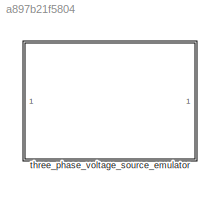
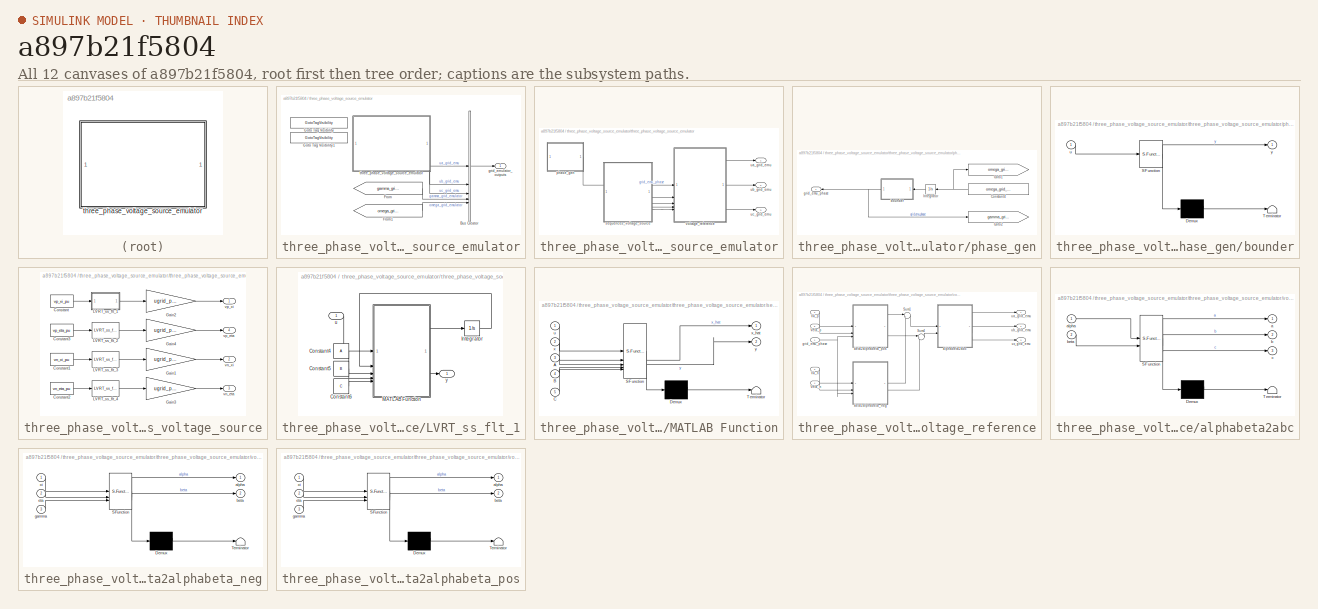
[diagram: thumbnail index - all 12 canvases of the model, root first then tree order]
MODEL slx_a897b21f5804
KIND library
CONFIG AbsTol = auto
CONFIG EnableMultiTasking = off
CONFIG FixedStep = auto
CONFIG MaxStep = auto
CONFIG MinStep = auto
CONFIG RelTol = 1e-3
CONFIG SampleTimeConstraint = Unconstrained
CONFIG SolverName = VariableStepAuto
CONFIG StartTime = 0.0
CONFIG StopTime = 10.0
BLOCK [SubSystem] three_phase_voltage_source_emulator
BLOCK [BusCreator] three_phase_voltage_source_emulator/Bus Creator
  DisplayOption = bar
  InheritFromInputs = on
  Inputs = 5
BLOCK [From] three_phase_voltage_source_emulator/From
  GotoTag = gamma_grid_emulator
  TagVisibility = scoped
BLOCK [From] three_phase_voltage_source_emulator/From1
  GotoTag = omega_grid_emulator
  TagVisibility = scoped
BLOCK [GotoTagVisibility] three_phase_voltage_source_emulator/Goto Tag Visibility
  GotoTag = omega_grid_emulator
BLOCK [GotoTagVisibility] three_phase_voltage_source_emulator/Goto Tag Visibility1
  GotoTag = gamma_grid_emulator
BLOCK [Outport] three_phase_voltage_source_emulator/grid_emulator_outputs
  VectorParamsAs1DForOutWhenUnconnected = off
BLOCK [SubSystem] three_phase_voltage_source_emulator/three_phase_voltage_source_emulator
BLOCK [SubSystem] three_phase_voltage_source_emulator/three_phase_voltage_source_emulator/phase_gen
BLOCK [Constant] three_phase_voltage_source_emulator/three_phase_voltage_source_emulator/phase_gen/Constant4
  NameLocation = top
  Value = omega_grid_emulator_nom
BLOCK [Goto] three_phase_voltage_source_emulator/three_phase_voltage_source_emulator/phase_gen/Goto1
  GotoTag = omega_grid_emulator
  TagVisibility = scoped
BLOCK [Goto] three_phase_voltage_source_emulator/three_phase_voltage_source_emulator/phase_gen/Goto2
  GotoTag = gamma_grid_emulator
  TagVisibility = scoped
BLOCK [Integrator] three_phase_voltage_source_emulator/three_phase_voltage_source_emulator/phase_gen/Integrator
  NameLocation = top
BLOCK [SubSystem] three_phase_voltage_source_emulator/three_phase_voltage_source_emulator/phase_gen/bounder
  ErrorFcn = Stateflow.Translate.translate
  PermitHierarchicalResolution = ExplicitOnly
  SFBlockType = MATLAB Function
  TreatAsAtomicUnit = on
  TreatAsGroupedWhenPropagatingVariantConditions = off
BLOCK [Demux] three_phase_voltage_source_emulator/three_phase_voltage_source_emulator/phase_gen/bounder/ Demux 
  Outputs = 1
BLOCK [S-Function] three_phase_voltage_source_emulator/three_phase_voltage_source_emulator/phase_gen/bounder/ SFunction 
  EnableBusSupport = off
  FunctionName = sf_sfun
  PortCounts = [1 2]
  SFcnIsStateOwnerBlock = off
  SFunctionDeploymentMode = off
  Tag = Stateflow S-Function 32
BLOCK [Terminator] three_phase_voltage_source_emulator/three_phase_voltage_source_emulator/phase_gen/bounder/ Terminator 
BLOCK [Inport] three_phase_voltage_source_emulator/three_phase_voltage_source_emulator/phase_gen/bounder/u
BLOCK [Outport] three_phase_voltage_source_emulator/three_phase_voltage_source_emulator/phase_gen/bounder/y
  VectorParamsAs1DForOutWhenUnconnected = off
BLOCK [Outport] three_phase_voltage_source_emulator/three_phase_voltage_source_emulator/phase_gen/grid_emu_phase
  VectorParamsAs1DForOutWhenUnconnected = off
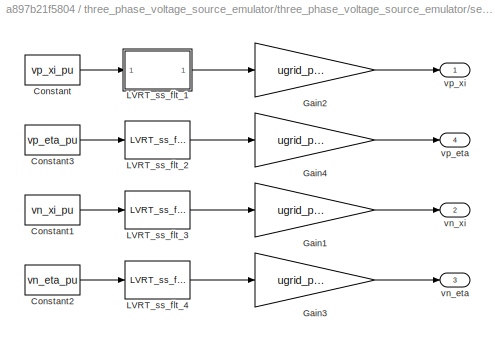
BLOCK [SubSystem] three_phase_voltage_source_emulator/three_phase_voltage_source_emulator/sequences_voltage_source
BLOCK [Constant] three_phase_voltage_source_emulator/three_phase_voltage_source_emulator/sequences_voltage_source/Constant
  Value = vp_xi_pu
BLOCK [Constant] three_phase_voltage_source_emulator/three_phase_voltage_source_emulator/sequences_voltage_source/Constant1
  Value = vn_xi_pu
BLOCK [Constant] three_phase_voltage_source_emulator/three_phase_voltage_source_emulator/sequences_voltage_source/Constant2
  Value = vn_eta_pu
BLOCK [Constant] three_phase_voltage_source_emulator/three_phase_voltage_source_emulator/sequences_voltage_source/Constant3
  Value = vp_eta_pu
BLOCK [Gain] three_phase_voltage_source_emulator/three_phase_voltage_source_emulator/sequences_voltage_source/Gain1
  Gain = ugrid_phase
BLOCK [Gain] three_phase_voltage_source_emulator/three_phase_voltage_source_emulator/sequences_voltage_source/Gain2
  Gain = ugrid_phase
BLOCK [Gain] three_phase_voltage_source_emulator/three_phase_voltage_source_emulator/sequences_voltage_source/Gain3
  Gain = ugrid_phase
BLOCK [Gain] three_phase_voltage_source_emulator/three_phase_voltage_source_emulator/sequences_voltage_source/Gain4
  Gain = ugrid_phase
BLOCK [SubSystem] three_phase_voltage_source_emulator/three_phase_voltage_source_emulator/sequences_voltage_source/LVRT_ss_flt_1
BLOCK [Constant] three_phase_voltage_source_emulator/three_phase_voltage_source_emulator/sequences_voltage_source/LVRT_ss_flt_1/Constant4
  Value = A
BLOCK [Constant] three_phase_voltage_source_emulator/three_phase_voltage_source_emulator/sequences_voltage_source/LVRT_ss_flt_1/Constant5
  Value = B
BLOCK [Constant] three_phase_voltage_source_emulator/three_phase_voltage_source_emulator/sequences_voltage_source/LVRT_ss_flt_1/Constant6
  Value = C
BLOCK [Integrator] three_phase_voltage_source_emulator/three_phase_voltage_source_emulator/sequences_voltage_source/LVRT_ss_flt_1/Integrator
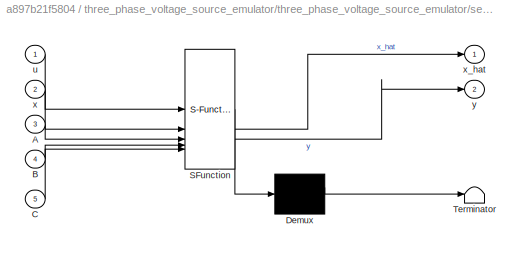
BLOCK [SubSystem] three_phase_voltage_source_emulator/three_phase_voltage_source_emulator/sequences_voltage_source/LVRT_ss_flt_1/MATLAB Function
  ErrorFcn = Stateflow.Translate.translate
  PermitHierarchicalResolution = ExplicitOnly
  SFBlockType = MATLAB Function
  TreatAsAtomicUnit = on
BLOCK [Demux] three_phase_voltage_source_emulator/three_phase_voltage_source_emulator/sequences_voltage_source/LVRT_ss_flt_1/MATLAB Function/ Demux 
  Outputs = 1
BLOCK [S-Function] three_phase_voltage_source_emulator/three_phase_voltage_source_emulator/sequences_voltage_source/LVRT_ss_flt_1/MATLAB Function/ SFunction 
  EnableBusSupport = off
  FunctionName = sf_sfun
  PortCounts = [5 3]
  SFcnIsStateOwnerBlock = off
  SFunctionDeploymentMode = off
  Tag = Stateflow S-Function 1
BLOCK [Terminator] three_phase_voltage_source_emulator/three_phase_voltage_source_emulator/sequences_voltage_source/LVRT_ss_flt_1/MATLAB Function/ Terminator 
BLOCK [Inport] three_phase_voltage_source_emulator/three_phase_voltage_source_emulator/sequences_voltage_source/LVRT_ss_flt_1/MATLAB Function/A
  Port = 3
BLOCK [Inport] three_phase_voltage_source_emulator/three_phase_voltage_source_emulator/sequences_voltage_source/LVRT_ss_flt_1/MATLAB Function/B
  Port = 4
BLOCK [Inport] three_phase_voltage_source_emulator/three_phase_voltage_source_emulator/sequences_voltage_source/LVRT_ss_flt_1/MATLAB Function/C
  Port = 5
BLOCK [Inport] three_phase_voltage_source_emulator/three_phase_voltage_source_emulator/sequences_voltage_source/LVRT_ss_flt_1/MATLAB Function/u
BLOCK [Inport] three_phase_voltage_source_emulator/three_phase_voltage_source_emulator/sequences_voltage_source/LVRT_ss_flt_1/MATLAB Function/x
  Port = 2
BLOCK [Outport] three_phase_voltage_source_emulator/three_phase_voltage_source_emulator/sequences_voltage_source/LVRT_ss_flt_1/MATLAB Function/x_hat
BLOCK [Outport] three_phase_voltage_source_emulator/three_phase_voltage_source_emulator/sequences_voltage_source/LVRT_ss_flt_1/MATLAB Function/y
  Port = 2
BLOCK [Inport] three_phase_voltage_source_emulator/three_phase_voltage_source_emulator/sequences_voltage_source/LVRT_ss_flt_1/u
BLOCK [Outport] three_phase_voltage_source_emulator/three_phase_voltage_source_emulator/sequences_voltage_source/LVRT_ss_flt_1/y
BLOCK [Reference] three_phase_voltage_source_emulator/three_phase_voltage_source_emulator/sequences_voltage_source/LVRT_ss_flt_2  REF=$bdroot/three_phase_voltage_source_emulator/three_phase_voltage_source_emulator/sequences_voltage_source/LVRT_ss_flt_1
  SourceBlock = $bdroot/three_phase_voltage_source_emulator/three_phase_voltage_source_emulator/sequences_voltage_source/LVRT_ss_flt_1
  SourceType = SubSystem
BLOCK [Reference] three_phase_voltage_source_emulator/three_phase_voltage_source_emulator/sequences_voltage_source/LVRT_ss_flt_3  REF=$bdroot/three_phase_voltage_source_emulator/three_phase_voltage_source_emulator/sequences_voltage_source/LVRT_ss_flt_1
  SourceBlock = $bdroot/three_phase_voltage_source_emulator/three_phase_voltage_source_emulator/sequences_voltage_source/LVRT_ss_flt_1
  SourceType = SubSystem
BLOCK [Reference] three_phase_voltage_source_emulator/three_phase_voltage_source_emulator/sequences_voltage_source/LVRT_ss_flt_4  REF=$bdroot/three_phase_voltage_source_emulator/three_phase_voltage_source_emulator/sequences_voltage_source/LVRT_ss_flt_1
  SourceBlock = $bdroot/three_phase_voltage_source_emulator/three_phase_voltage_source_emulator/sequences_voltage_source/LVRT_ss_flt_1
  SourceType = SubSystem
BLOCK [Outport] three_phase_voltage_source_emulator/three_phase_voltage_source_emulator/sequences_voltage_source/vn_eta
  Port = 3
  VectorParamsAs1DForOutWhenUnconnected = off
BLOCK [Outport] three_phase_voltage_source_emulator/three_phase_voltage_source_emulator/sequences_voltage_source/vn_xi
  Port = 2
  VectorParamsAs1DForOutWhenUnconnected = off
BLOCK [Outport] three_phase_voltage_source_emulator/three_phase_voltage_source_emulator/sequences_voltage_source/vp_eta
  Port = 4
  VectorParamsAs1DForOutWhenUnconnected = off
BLOCK [Outport] three_phase_voltage_source_emulator/three_phase_voltage_source_emulator/sequences_voltage_source/vp_xi
  VectorParamsAs1DForOutWhenUnconnected = off
BLOCK [Outport] three_phase_voltage_source_emulator/three_phase_voltage_source_emulator/ua_grid_emu
  VectorParamsAs1DForOutWhenUnconnected = off
BLOCK [Outport] three_phase_voltage_source_emulator/three_phase_voltage_source_emulator/ub_grid_emu
  Port = 2
  VectorParamsAs1DForOutWhenUnconnected = off
BLOCK [Outport] three_phase_voltage_source_emulator/three_phase_voltage_source_emulator/uc_grid_emu
  Port = 3
  VectorParamsAs1DForOutWhenUnconnected = off
BLOCK [SubSystem] three_phase_voltage_source_emulator/three_phase_voltage_source_emulator/voltage_reference
BLOCK [Sum] three_phase_voltage_source_emulator/three_phase_voltage_source_emulator/voltage_reference/Sum1
  Inputs = |++
BLOCK [Sum] three_phase_voltage_source_emulator/three_phase_voltage_source_emulator/voltage_reference/Sum4
  Inputs = |++
BLOCK [Inport] three_phase_voltage_source_emulator/three_phase_voltage_source_emulator/voltage_reference/Veta_n
  Port = 4
BLOCK [Inport] three_phase_voltage_source_emulator/three_phase_voltage_source_emulator/voltage_reference/Veta_p
  Port = 5
BLOCK [Inport] three_phase_voltage_source_emulator/three_phase_voltage_source_emulator/voltage_reference/Vxi_n
  Port = 3
BLOCK [Inport] three_phase_voltage_source_emulator/three_phase_voltage_source_emulator/voltage_reference/Vxi_p
  Port = 2
BLOCK [SubSystem] three_phase_voltage_source_emulator/three_phase_voltage_source_emulator/voltage_reference/alphabeta2abc
  ErrorFcn = Stateflow.Translate.translate
  PermitHierarchicalResolution = ExplicitOnly
  SFBlockType = MATLAB Function
  TreatAsAtomicUnit = on
BLOCK [Demux] three_phase_voltage_source_emulator/three_phase_voltage_source_emulator/voltage_reference/alphabeta2abc/ Demux 
  Outputs = 1
BLOCK [S-Function] three_phase_voltage_source_emulator/three_phase_voltage_source_emulator/voltage_reference/alphabeta2abc/ SFunction 
  EnableBusSupport = off
  FunctionName = sf_sfun
  PortCounts = [2 4]
  SFcnIsStateOwnerBlock = off
  SFunctionDeploymentMode = off
  Tag = Stateflow S-Function 2
BLOCK [Terminator] three_phase_voltage_source_emulator/three_phase_voltage_source_emulator/voltage_reference/alphabeta2abc/ Terminator 
BLOCK [Outport] three_phase_voltage_source_emulator/three_phase_voltage_source_emulator/voltage_reference/alphabeta2abc/a
BLOCK [Inport] three_phase_voltage_source_emulator/three_phase_voltage_source_emulator/voltage_reference/alphabeta2abc/alpha
BLOCK [Outport] three_phase_voltage_source_emulator/three_phase_voltage_source_emulator/voltage_reference/alphabeta2abc/b
  Port = 2
BLOCK [Inport] three_phase_voltage_source_emulator/three_phase_voltage_source_emulator/voltage_reference/alphabeta2abc/beta
  Port = 2
BLOCK [Outport] three_phase_voltage_source_emulator/three_phase_voltage_source_emulator/voltage_reference/alphabeta2abc/c
  Port = 3
BLOCK [Inport] three_phase_voltage_source_emulator/three_phase_voltage_source_emulator/voltage_reference/grid_emu_phase
BLOCK [Outport] three_phase_voltage_source_emulator/three_phase_voltage_source_emulator/voltage_reference/ua_grid_emu
  VectorParamsAs1DForOutWhenUnconnected = off
BLOCK [Outport] three_phase_voltage_source_emulator/three_phase_voltage_source_emulator/voltage_reference/ub_grid_emu
  Port = 2
  VectorParamsAs1DForOutWhenUnconnected = off
BLOCK [Outport] three_phase_voltage_source_emulator/three_phase_voltage_source_emulator/voltage_reference/uc_grid_emu
  Port = 3
  VectorParamsAs1DForOutWhenUnconnected = off
BLOCK [SubSystem] three_phase_voltage_source_emulator/three_phase_voltage_source_emulator/voltage_reference/xieta2alphabeta_neg
  ErrorFcn = Stateflow.Translate.translate
  PermitHierarchicalResolution = ExplicitOnly
  SFBlockType = MATLAB Function
  TreatAsAtomicUnit = on
BLOCK [Demux] three_phase_voltage_source_emulator/three_phase_voltage_source_emulator/voltage_reference/xieta2alphabeta_neg/ Demux 
  Outputs = 1
BLOCK [S-Function] three_phase_voltage_source_emulator/three_phase_voltage_source_emulator/voltage_reference/xieta2alphabeta_neg/ SFunction 
  EnableBusSupport = off
  FunctionName = sf_sfun
  PortCounts = [3 3]
  SFcnIsStateOwnerBlock = off
  SFunctionDeploymentMode = off
  Tag = Stateflow S-Function 3
BLOCK [Terminator] three_phase_voltage_source_emulator/three_phase_voltage_source_emulator/voltage_reference/xieta2alphabeta_neg/ Terminator 
BLOCK [Outport] three_phase_voltage_source_emulator/three_phase_voltage_source_emulator/voltage_reference/xieta2alphabeta_neg/alpha
BLOCK [Outport] three_phase_voltage_source_emulator/three_phase_voltage_source_emulator/voltage_reference/xieta2alphabeta_neg/beta
  Port = 2
BLOCK [Inport] three_phase_voltage_source_emulator/three_phase_voltage_source_emulator/voltage_reference/xieta2alphabeta_neg/eta
  Port = 2
BLOCK [Inport] three_phase_voltage_source_emulator/three_phase_voltage_source_emulator/voltage_reference/xieta2alphabeta_neg/gamma
  Port = 3
BLOCK [Inport] three_phase_voltage_source_emulator/three_phase_voltage_source_emulator/voltage_reference/xieta2alphabeta_neg/xi
BLOCK [SubSystem] three_phase_voltage_source_emulator/three_phase_voltage_source_emulator/voltage_reference/xieta2alphabeta_pos
  ErrorFcn = Stateflow.Translate.translate
  PermitHierarchicalResolution = ExplicitOnly
  SFBlockType = MATLAB Function
  TreatAsAtomicUnit = on
BLOCK [Demux] three_phase_voltage_source_emulator/three_phase_voltage_source_emulator/voltage_reference/xieta2alphabeta_pos/ Demux 
  Outputs = 1
BLOCK [S-Function] three_phase_voltage_source_emulator/three_phase_voltage_source_emulator/voltage_reference/xieta2alphabeta_pos/ SFunction 
  EnableBusSupport = off
  FunctionName = sf_sfun
  PortCounts = [3 3]
  SFcnIsStateOwnerBlock = off
  SFunctionDeploymentMode = off
  Tag = Stateflow S-Function 8
BLOCK [Terminator] three_phase_voltage_source_emulator/three_phase_voltage_source_emulator/voltage_reference/xieta2alphabeta_pos/ Terminator 
BLOCK [Outport] three_phase_voltage_source_emulator/three_phase_voltage_source_emulator/voltage_reference/xieta2alphabeta_pos/alpha
BLOCK [Outport] three_phase_voltage_source_emulator/three_phase_voltage_source_emulator/voltage_reference/xieta2alphabeta_pos/beta
  Port = 2
BLOCK [Inport] three_phase_voltage_source_emulator/three_phase_voltage_source_emulator/voltage_reference/xieta2alphabeta_pos/eta
  Port = 2
BLOCK [Inport] three_phase_voltage_source_emulator/three_phase_voltage_source_emulator/voltage_reference/xieta2alphabeta_pos/gamma
  Port = 3
BLOCK [Inport] three_phase_voltage_source_emulator/three_phase_voltage_source_emulator/voltage_reference/xieta2alphabeta_pos/xi
CHART three_phase_voltage_source_emulator/three_phase_voltage_source_emulator/sequences_voltage_source/LVRT_ss_flt_1/MATLAB Function states=1 transitions=1
  STATE_LABEL 'eML_blk_kernel()'
  STATE_LABEL 'SCRIPT:\nfunction [x_hat,y] = fcn(u,x,A,B,C)\nx_hat = B*u + A*x;\ny = C*x;\n'
CHART three_phase_voltage_source_emulator/three_phase_voltage_source_emulator/voltage_reference/alphabeta2abc states=1 transitions=1
  STATE_LABEL 'eML_blk_kernel()'
  STATE_LABEL 'SCRIPT:\nfunction [a,b,c] = alphabeta2abc(alpha,beta)\n\n    a  =  alpha;\n    b  =  -0.5*alpha + sqrt(3)/2*beta;\n    c  =  -0.5*alpha - sqrt(3)/2*beta;\nend\n'
CHART three_phase_voltage_source_emulator/three_phase_voltage_source_emulator/voltage_reference/xieta2alphabeta_neg states=1 transitions=1
  STATE_LABEL 'eML_blk_kernel()'
  STATE_LABEL 'SCRIPT:\nfunction [alpha,beta] = xieta2alphabeta_neg(xi,eta,gamma)\n\n    alpha  =  xi*cos(gamma) + eta*sin(gamma);\n    beta = -xi*sin(gamma) + eta*cos(gamma);\n\nend\n'
CHART three_phase_voltage_source_emulator/three_phase_voltage_source_emulator/voltage_reference/xieta2alphabeta_pos states=1 transitions=1
  STATE_LABEL 'eML_blk_kernel()'
  STATE_LABEL 'SCRIPT:\nfunction [alpha,beta] = xieta2alphabeta_pos(xi,eta,gamma)\n\n    alpha  =  xi*cos(gamma) - eta*sin(gamma);\n    beta = xi*sin(gamma) + eta*cos(gamma);\n\nend\n'
CHART three_phase_voltage_source_emulator/three_phase_voltage_source_emulator/phase_gen/bounder states=1 transitions=1
  STATE_LABEL 'eML_blk_kernel()'
  STATE_LABEL 'SCRIPT:\nfunction y = bounder(u)    \n    y = -pi + mod(u+3*pi,2*pi);\nend\n\n'
CHART  states=0 transitions=0
CHART  states=0 transitions=0
CHART  states=0 transitions=0
CHART  states=0 transitions=0
CHART  states=0 transitions=0
